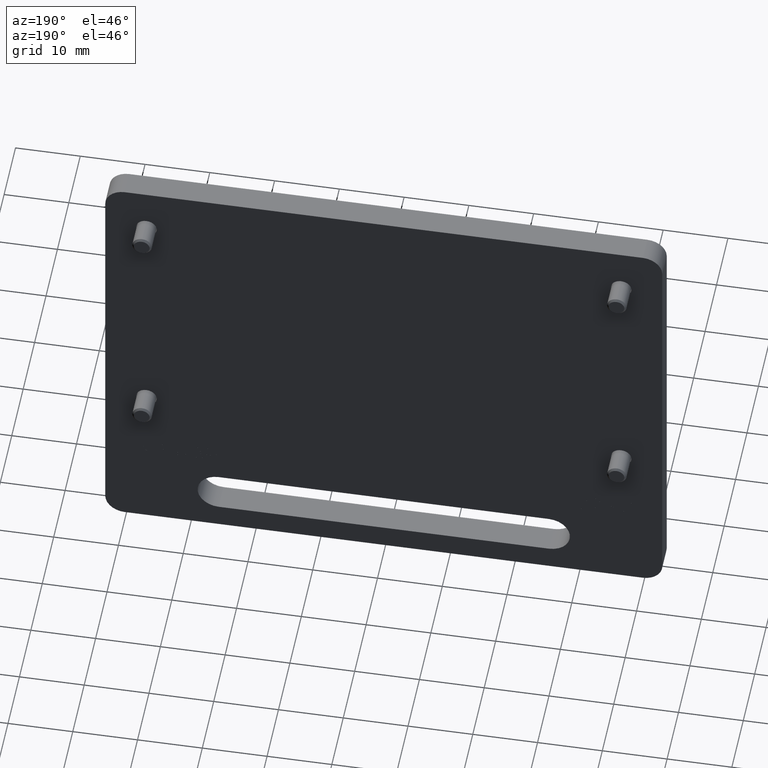
[diagram: clean part render]
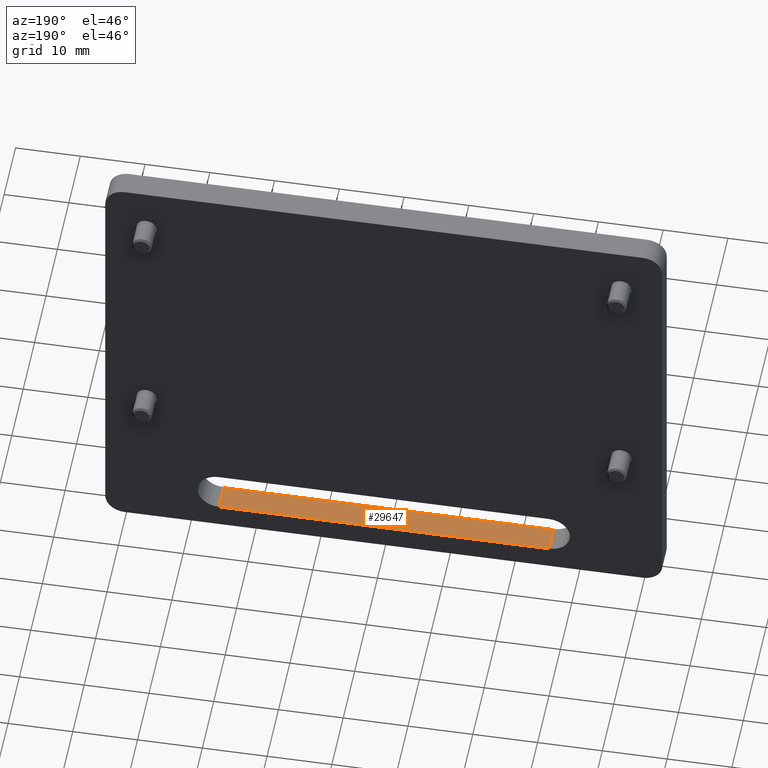
[diagram: same view with one face highlighted and labeled with its STEP entity id]
A machine part, auxiliary view. The second image highlights one B-rep face of the part: STEP entity #29647.
In plain terms, the highlighted planar face has unit normal (0, 0, 1).
Its self-contained STEP definition (entity closure, byte-faithful):
#321 = EDGE_CURVE ( 'NONE', #15482, #8217, #13747, .T. ) ;
#1218 = CARTESIAN_POINT ( 'NONE',  ( 25.49999999999999645, 4.500000000000000000, -40.44999999999998863 ) ) ;
#1702 = CARTESIAN_POINT ( 'NONE',  ( -25.50000000000000000, 4.500000000000000000, -40.44999999999998863 ) ) ;
#2937 = ORIENTED_EDGE ( 'NONE', *, *, #9741, .T. ) ;
#3589 = VERTEX_POINT ( 'NONE', #1218 ) ;
#4504 = LINE ( 'NONE', #13875, #6394 ) ;
#5582 = CARTESIAN_POINT ( 'NONE',  ( -25.50000000000000000, 4.500000000000000000, -40.44999999999998863 ) ) ;
#6382 = DIRECTION ( 'NONE',  ( 1.000000000000000000, 0.000000000000000000, -0.000000000000000000 ) ) ;
#6394 = VECTOR ( 'NONE', #13569, 1000.000000000000000 ) ;
#7045 = DIRECTION ( 'NONE',  ( -0.000000000000000000, -1.000000000000000000, -0.000000000000000000 ) ) ;
#7706 = CARTESIAN_POINT ( 'NONE',  ( 25.50000000000000000, 4.500000000000000000, -40.44999999999998863 ) ) ;
#8104 = ORIENTED_EDGE ( 'NONE', *, *, #321, .T. ) ;
#8217 = VERTEX_POINT ( 'NONE', #17196 ) ;
#9022 = EDGE_LOOP ( 'NONE', ( #8104, #2937, #18594, #14103 ) ) ;
#9741 = EDGE_CURVE ( 'NONE', #8217, #28020, #19913, .T. ) ;
#13306 = VECTOR ( 'NONE', #13612, 1000.000000000000000 ) ;
#13569 = DIRECTION ( 'NONE',  ( -1.000000000000000000, -0.000000000000000000, -0.000000000000000000 ) ) ;
#13612 = DIRECTION ( 'NONE',  ( -0.000000000000000000, -1.000000000000000000, -0.000000000000000000 ) ) ;
#13747 = LINE ( 'NONE', #1702, #13306 ) ;
#13875 = CARTESIAN_POINT ( 'NONE',  ( -25.50000000000000000, 4.500000000000000000, -40.44999999999998863 ) ) ;
#14103 = ORIENTED_EDGE ( 'NONE', *, *, #30851, .T. ) ;
#14994 = FACE_OUTER_BOUND ( 'NONE', #9022, .T. ) ;
#15482 = VERTEX_POINT ( 'NONE', #16914 ) ;
#16905 = DIRECTION ( 'NONE',  ( 1.000000000000000000, 0.000000000000000000, -0.000000000000000000 ) ) ;
#16914 = CARTESIAN_POINT ( 'NONE',  ( -25.50000000000000000, 4.500000000000000000, -40.44999999999998863 ) ) ;
#17196 = CARTESIAN_POINT ( 'NONE',  ( -25.50000000000000000, 0.4000000000000001887, -40.44999999999998863 ) ) ;
#17210 = PLANE ( 'NONE',  #17830 ) ;
#17742 = EDGE_CURVE ( 'NONE', #3589, #28020, #19657, .T. ) ;
#17830 = AXIS2_PLACEMENT_3D ( 'NONE', #5582, #19867, #16905 ) ;
#18594 = ORIENTED_EDGE ( 'NONE', *, *, #17742, .F. ) ;
#19657 = LINE ( 'NONE', #7706, #20058 ) ;
#19849 = VECTOR ( 'NONE', #6382, 1000.000000000000000 ) ;
#19867 = DIRECTION ( 'NONE',  ( 0.000000000000000000, 0.000000000000000000, 1.000000000000000000 ) ) ;
#19913 = LINE ( 'NONE', #29360, #19849 ) ;
#20058 = VECTOR ( 'NONE', #7045, 1000.000000000000000 ) ;
#28020 = VERTEX_POINT ( 'NONE', #28592 ) ;
#28592 = CARTESIAN_POINT ( 'NONE',  ( 25.50000000000000000, 0.4000000000000001887, -40.44999999999998863 ) ) ;
#29360 = CARTESIAN_POINT ( 'NONE',  ( -25.50000000000000000, 0.4000000000000001887, -40.44999999999998863 ) ) ;
#29647 = ADVANCED_FACE ( 'NONE', ( #14994 ), #17210, .T. ) ;
#30851 = EDGE_CURVE ( 'NONE', #3589, #15482, #4504, .T. ) ;